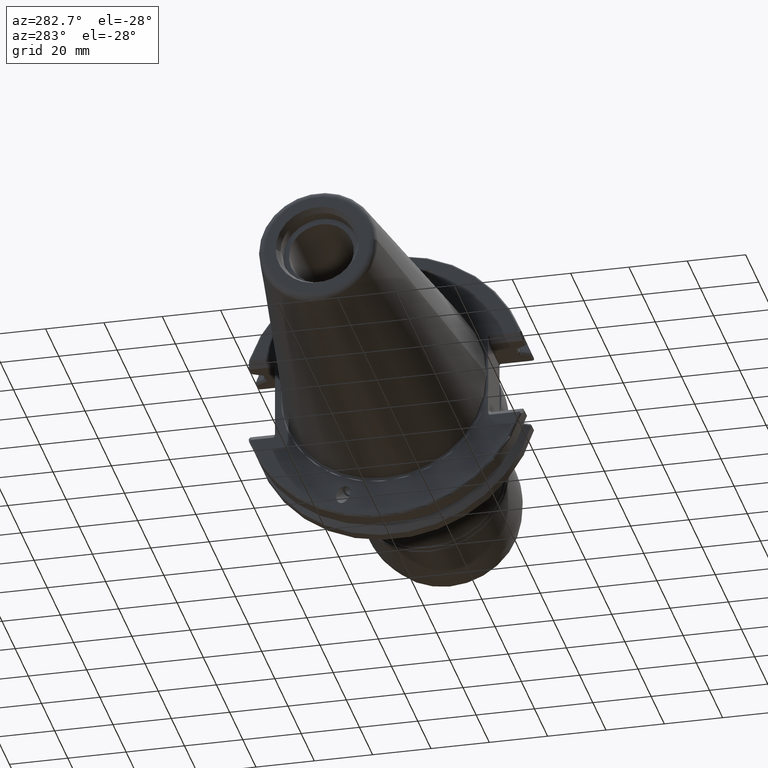
[diagram: clean part render]
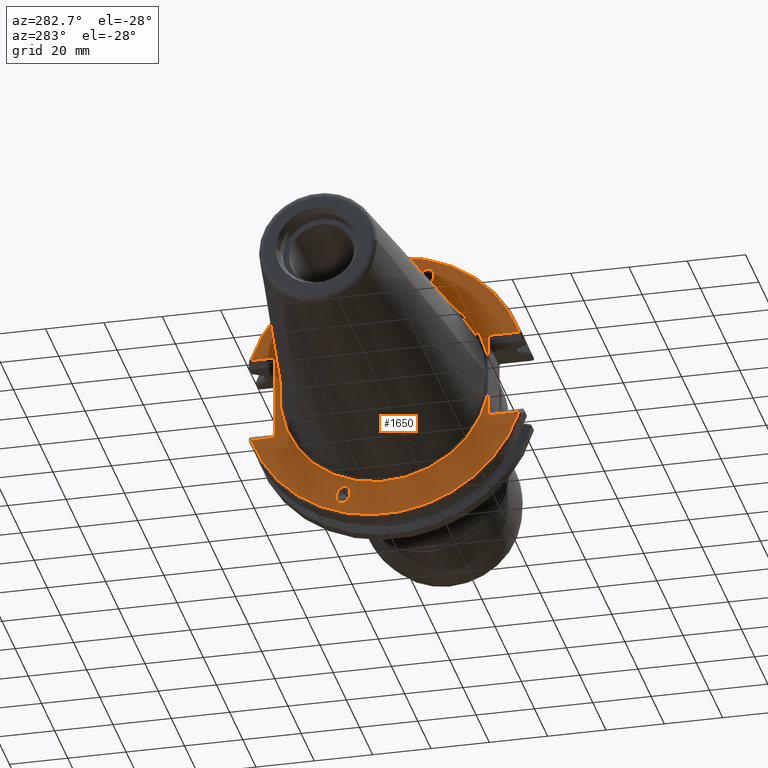
[diagram: same view with one face highlighted and labeled with its STEP entity id]
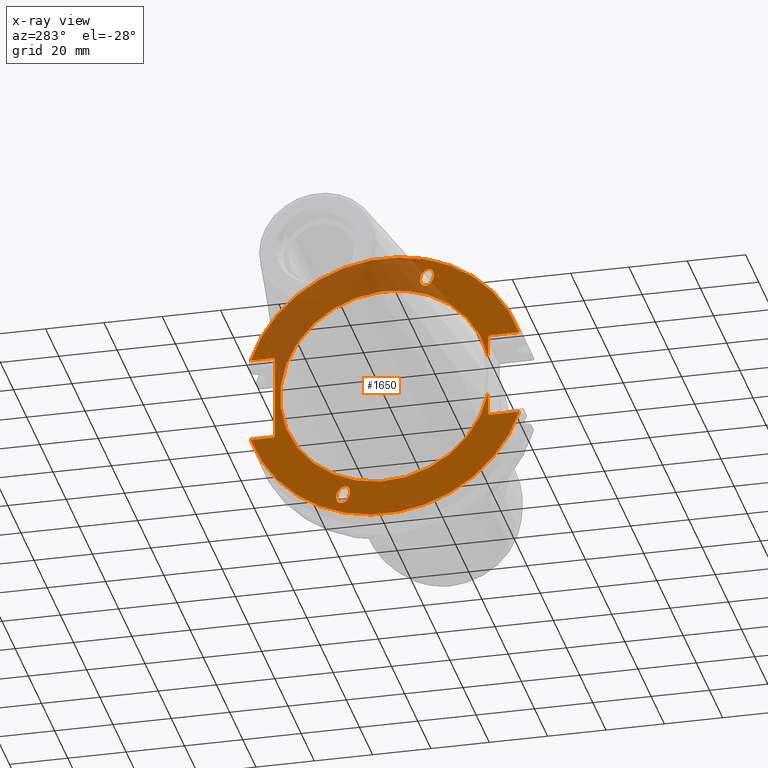
[diagram: x-ray of the same camera — body ghosted, the highlighted face saturated]
A machine part, auxiliary view. The second image highlights one B-rep face of the part: STEP entity #1650.
The next image is the same camera in x-ray: the body ghosted, the highlighted face saturated — about 30% of this face is hidden behind the body in this view.
In plain terms, the highlighted planar face has unit normal (-1, -0, 0).
Its self-contained STEP definition (entity closure, byte-faithful):
#21 = CARTESIAN_POINT ( 'NONE',  ( 1.316068725322319600, -10.27418603782531800, 42.55461335172919500 ) ) ;
#78 = CARTESIAN_POINT ( 'NONE',  ( 1.316068725322319600, -14.91185546617001200, 42.55461335172919500 ) ) ;
#107 =( BOUNDED_CURVE ( )  B_SPLINE_CURVE ( 3, ( #6270, #2940, #1846, #5735 ),
 .UNSPECIFIED., .F., .F. ) 
 B_SPLINE_CURVE_WITH_KNOTS ( ( 4, 4 ),
 ( 1.570796326794898300, 3.141592653589793100 ),
 .UNSPECIFIED. ) 
 CURVE ( )  GEOMETRIC_REPRESENTATION_ITEM ( )  RATIONAL_B_SPLINE_CURVE ( ( 1.000000000000000000, 0.8047378541243654900, 0.8047378541243654900, 1.000000000000000000 ) ) 
 REPRESENTATION_ITEM ( '' )  );
#183 = ORIENTED_EDGE ( 'NONE', *, *, #1463, .F. ) ;
#189 = LINE ( 'NONE', #4289, #5932 ) ;
#190 = CARTESIAN_POINT ( 'NONE',  ( 1.316068725322319600, 37.69996832505477600, 15.04999999999997900 ) ) ;
#198 = VERTEX_POINT ( 'NONE', #6967 ) ;
#204 = CARTESIAN_POINT ( 'NONE',  ( 1.316068725322319600, 45.99874359242439700, 15.04999999999997900 ) ) ;
#232 = CARTESIAN_POINT ( 'NONE',  ( 1.316068725322319600, -13.85789992307661000, 36.37956679428695100 ) ) ;
#279 = ORIENTED_EDGE ( 'NONE', *, *, #6528, .T. ) ;
#318 = CARTESIAN_POINT ( 'NONE',  ( 1.316068725322319600, -35.32003167494522000, 7.064700984471993000 ) ) ;
#386 = DIRECTION ( 'NONE',  ( -1.000000000000000000, -4.151679104512832300E-020, 0.0000000000000000000 ) ) ;
#405 = DIRECTION ( 'NONE',  ( -0.0000000000000000000, 1.000000000000000000, -0.0000000000000000000 ) ) ;
#483 = VERTEX_POINT ( 'NONE', #6521 ) ;
#528 = EDGE_CURVE ( 'NONE', #1167, #6058, #1085, .T. ) ;
#529 = CARTESIAN_POINT ( 'NONE',  ( 1.316068725322319600, -14.91185546617001200, 42.55461335172919500 ) ) ;
#581 = AXIS2_PLACEMENT_3D ( 'NONE', #2067, #5975, #2625 ) ;
#594 = EDGE_CURVE ( 'NONE', #1953, #483, #2726, .T. ) ;
#629 = VERTEX_POINT ( 'NONE', #1330 ) ;
#721 = EDGE_CURVE ( 'NONE', #5406, #4374, #4163, .T. ) ;
#730 =( BOUNDED_CURVE ( )  B_SPLINE_CURVE ( 3, ( #7175, #3823, #1618, #5492 ),
 .UNSPECIFIED., .F., .F. ) 
 B_SPLINE_CURVE_WITH_KNOTS ( ( 4, 4 ),
 ( 4.712388980384686100, 6.283185307179586200 ),
 .UNSPECIFIED. ) 
 CURVE ( )  GEOMETRIC_REPRESENTATION_ITEM ( )  RATIONAL_B_SPLINE_CURVE ( ( 1.000000000000000000, 0.8047378541243641600, 0.8047378541243641600, 1.000000000000000000 ) ) 
 REPRESENTATION_ITEM ( '' )  );
#778 = CARTESIAN_POINT ( 'NONE',  ( 1.316068725322319600, -0.02003167494522145300, -2.740953257266259200E-015 ) ) ;
#800 = ORIENTED_EDGE ( 'NONE', *, *, #3792, .T. ) ;
#804 = CARTESIAN_POINT ( 'NONE',  ( 1.316068725322319600, 38.46196832505477700, 15.04999999999997900 ) ) ;
#829 = CIRCLE ( 'NONE', #5994, 48.41249999999998700 ) ;
#910 = CARTESIAN_POINT ( 'NONE',  ( 1.316068725322319600, 35.97996832505477000, -2.740953257266259200E-015 ) ) ;
#949 = LINE ( 'NONE', #5942, #2439 ) ;
#1018 = EDGE_CURVE ( 'NONE', #4945, #2191, #6047, .T. ) ;
#1022 = ORIENTED_EDGE ( 'NONE', *, *, #2443, .F. ) ;
#1084 = LINE ( 'NONE', #2953, #5531 ) ;
#1085 = LINE ( 'NONE', #3754, #4049 ) ;
#1115 = CARTESIAN_POINT ( 'NONE',  ( 1.316068725322319600, 13.81783657318591500, -36.37956679428705800 ) ) ;
#1162 = CARTESIAN_POINT ( 'NONE',  ( 1.316068725322319600, 13.81783657318591500, -36.37956679428705800 ) ) ;
#1167 = VERTEX_POINT ( 'NONE', #1738 ) ;
#1226 = VECTOR ( 'NONE', #5749, 1000.000000000000000 ) ;
#1330 = CARTESIAN_POINT ( 'NONE',  ( 1.316068725322319600, -35.32003167494522000, -13.97236926547168800 ) ) ;
#1339 = DIRECTION ( 'NONE',  ( 0.0000000000000000000, 1.000000000000000000, 0.0000000000000000000 ) ) ;
#1432 = LINE ( 'NONE', #6593, #3515 ) ;
#1463 = EDGE_CURVE ( 'NONE', #4712, #5286, #949, .T. ) ;
#1606 = ORIENTED_EDGE ( 'NONE', *, *, #6877, .T. ) ;
#1618 = CARTESIAN_POINT ( 'NONE',  ( 1.316068725322319800, 38.01559905958307400, -15.04999999999996000 ) ) ;
#1638 = CARTESIAN_POINT ( 'NONE',  ( 1.316068725322319600, -36.08203167494522000, -15.04999999999998500 ) ) ;
#1650 = ADVANCED_FACE ( 'NONE', ( #5667, #2532, #7178 ), #6509, .T. ) ;
#1688 = CARTESIAN_POINT ( 'NONE',  ( 1.316068725322319600, -35.63566240947351800, -15.04999999999998500 ) ) ;
#1701 = ORIENTED_EDGE ( 'NONE', *, *, #1994, .T. ) ;
#1738 = CARTESIAN_POINT ( 'NONE',  ( 1.316068725322319600, -46.03380848417921100, -15.04999999999998500 ) ) ;
#1761 = CIRCLE ( 'NONE', #3659, 35.99999999999999300 ) ;
#1771 = VECTOR ( 'NONE', #4538, 1000.000000000000000 ) ;
#1794 = CARTESIAN_POINT ( 'NONE',  ( 1.316068725322319600, 10.23412268793457800, -42.55461335172926600 ) ) ;
#1846 = CARTESIAN_POINT ( 'NONE',  ( 1.316068725322319300, -35.63566240947351800, 15.05000000000000400 ) ) ;
#1953 = VERTEX_POINT ( 'NONE', #4366 ) ;
#1994 = EDGE_CURVE ( 'NONE', #4374, #5406, #2687, .T. ) ;
#2067 = CARTESIAN_POINT ( 'NONE',  ( 1.316068725322319600, -0.02003167494522145300, -2.740953257266259200E-015 ) ) ;
#2094 = EDGE_CURVE ( 'NONE', #4173, #198, #107, .T. ) ;
#2147 = CARTESIAN_POINT ( 'NONE',  ( 1.316068725322319600, -35.32003167494522000, 13.97236926547170400 ) ) ;
#2148 = EDGE_CURVE ( 'NONE', #5650, #7081, #1761, .T. ) ;
#2165 = ORIENTED_EDGE ( 'NONE', *, *, #2094, .T. ) ;
#2191 = VERTEX_POINT ( 'NONE', #804 ) ;
#2218 = CARTESIAN_POINT ( 'NONE',  ( 1.316068725322319800, 38.01559905958307400, 15.04999999999998100 ) ) ;
#2242 = CARTESIAN_POINT ( 'NONE',  ( 1.316068725322319600, -35.32003167494522000, -13.97236926547168800 ) ) ;
#2251 =( BOUNDED_CURVE ( )  B_SPLINE_CURVE ( 3, ( #4455, #2764, #5549, #1115 ),
 .UNSPECIFIED., .F., .F. ) 
 B_SPLINE_CURVE_WITH_KNOTS ( ( 4, 4 ),
 ( 2.889693557950959900, 6.031286211540751700 ),
 .UNSPECIFIED. ) 
 CURVE ( )  GEOMETRIC_REPRESENTATION_ITEM ( )  RATIONAL_B_SPLINE_CURVE ( ( 1.000000000000000000, 0.3333333333333338100, 0.3333333333333338100, 1.000000000000000000 ) ) 
 REPRESENTATION_ITEM ( '' )  );
#2270 = ORIENTED_EDGE ( 'NONE', *, *, #6623, .T. ) ;
#2278 = CARTESIAN_POINT ( 'NONE',  ( 1.316068725322319600, 49.19246832505477600, 15.04999999999997900 ) ) ;
#2364 = CARTESIAN_POINT ( 'NONE',  ( 1.316068725322319600, 38.46196832505477700, -15.04999999999997200 ) ) ;
#2366 = ORIENTED_EDGE ( 'NONE', *, *, #594, .F. ) ;
#2439 = VECTOR ( 'NONE', #3712, 1000.000000000000000 ) ;
#2443 = EDGE_CURVE ( 'NONE', #7189, #198, #189, .T. ) ;
#2532 = FACE_OUTER_BOUND ( 'NONE', #5320, .T. ) ;
#2625 = DIRECTION ( 'NONE',  ( 0.0000000000000000000, -1.000000000000000000, 0.0000000000000000000 ) ) ;
#2681 = DIRECTION ( 'NONE',  ( -1.000000000000000000, -4.151679104512832300E-020, 0.0000000000000000000 ) ) ;
#2687 =( BOUNDED_CURVE ( )  B_SPLINE_CURVE ( 3, ( #529, #3866, #4975, #6027 ),
 .UNSPECIFIED., .F., .F. ) 
 B_SPLINE_CURVE_WITH_KNOTS ( ( 4, 4 ),
 ( 2.889693557950959100, 6.031286211540751700 ),
 .UNSPECIFIED. ) 
 CURVE ( )  GEOMETRIC_REPRESENTATION_ITEM ( )  RATIONAL_B_SPLINE_CURVE ( ( 1.000000000000000000, 0.3333333333333335400, 0.3333333333333335400, 1.000000000000000000 ) ) 
 REPRESENTATION_ITEM ( '' )  );
#2726 = LINE ( 'NONE', #190, #1226 ) ;
#2764 = CARTESIAN_POINT ( 'NONE',  ( 1.316068725322319600, 19.50946154462395700, -42.55461335172932300 ) ) ;
#2780 = CARTESIAN_POINT ( 'NONE',  ( 1.316068725322319600, 37.69996832505477600, 13.97236926547168400 ) ) ;
#2880 = CARTESIAN_POINT ( 'NONE',  ( 1.316068725322319600, 9.180167144841219000, -36.37956679428701500 ) ) ;
#2940 = CARTESIAN_POINT ( 'NONE',  ( 1.316068725322319300, -35.32003167494522000, 14.60363073452830000 ) ) ;
#2953 = CARTESIAN_POINT ( 'NONE',  ( 1.316068725322319600, -35.32003167494522000, 15.05000000000000100 ) ) ;
#3136 = EDGE_CURVE ( 'NONE', #5927, #6559, #2251, .T. ) ;
#3310 = CARTESIAN_POINT ( 'NONE',  ( 1.316068725322319600, 45.99874363068255400, -15.04999999999997200 ) ) ;
#3515 = VECTOR ( 'NONE', #7158, 1000.000000000000000 ) ;
#3659 = AXIS2_PLACEMENT_3D ( 'NONE', #778, #4677, #1339 ) ;
#3712 = DIRECTION ( 'NONE',  ( 0.0000000000000000000, -1.000000000000000000, 0.0000000000000000000 ) ) ;
#3754 = CARTESIAN_POINT ( 'NONE',  ( 1.316068725322319600, -49.23253167494522100, -15.04999999999998500 ) ) ;
#3792 = EDGE_CURVE ( 'NONE', #4712, #1167, #829, .T. ) ;
#3823 = CARTESIAN_POINT ( 'NONE',  ( 1.316068725322319800, 37.69996832505477600, -14.60363073452825900 ) ) ;
#3866 = CARTESIAN_POINT ( 'NONE',  ( 1.316068725322319600, -19.54952489451470000, 42.55461335172919500 ) ) ;
#3911 = CARTESIAN_POINT ( 'NONE',  ( 1.316068725322319600, -9.220230494731916700, 36.37956679428695100 ) ) ;
#3935 = EDGE_LOOP ( 'NONE', ( #2270, #5530 ) ) ;
#4049 = VECTOR ( 'NONE', #5428, 1000.000000000000000 ) ;
#4074 = ORIENTED_EDGE ( 'NONE', *, *, #528, .T. ) ;
#4134 = CIRCLE ( 'NONE', #581, 48.41249999999998700 ) ;
#4163 =( BOUNDED_CURVE ( )  B_SPLINE_CURVE ( 3, ( #4467, #3911, #21, #5031 ),
 .UNSPECIFIED., .F., .F. ) 
 B_SPLINE_CURVE_WITH_KNOTS ( ( 4, 4 ),
 ( 6.031286211540751700, 9.172878865130545700 ),
 .UNSPECIFIED. ) 
 CURVE ( )  GEOMETRIC_REPRESENTATION_ITEM ( )  RATIONAL_B_SPLINE_CURVE ( ( 1.000000000000000000, 0.3333333333333330400, 0.3333333333333330400, 1.000000000000000000 ) ) 
 REPRESENTATION_ITEM ( '' )  );
#4166 = ORIENTED_EDGE ( 'NONE', *, *, #721, .T. ) ;
#4173 = VERTEX_POINT ( 'NONE', #2147 ) ;
#4182 = ORIENTED_EDGE ( 'NONE', *, *, #4234, .T. ) ;
#4234 = EDGE_CURVE ( 'NONE', #2191, #483, #5581, .T. ) ;
#4270 = DIRECTION ( 'NONE',  ( 4.151679104512832300E-020, -1.000000000000000000, 0.0000000000000000000 ) ) ;
#4271 = CARTESIAN_POINT ( 'NONE',  ( 1.316068725322319600, -46.03380848417919700, 15.05000000000000100 ) ) ;
#4289 = CARTESIAN_POINT ( 'NONE',  ( 1.316068725322319600, -49.23253167494522100, 15.05000000000000100 ) ) ;
#4366 = CARTESIAN_POINT ( 'NONE',  ( 1.316068725322319600, 37.69996832505477600, -13.97236926547166500 ) ) ;
#4374 = VERTEX_POINT ( 'NONE', #78 ) ;
#4405 = CARTESIAN_POINT ( 'NONE',  ( 1.316068725322319600, -36.08203167494522000, -15.04999999999998500 ) ) ;
#4455 = CARTESIAN_POINT ( 'NONE',  ( 1.316068725322319600, 14.87179211627927500, -42.55461335172929400 ) ) ;
#4467 = CARTESIAN_POINT ( 'NONE',  ( 1.316068725322319600, -13.85789992307661000, 36.37956679428695100 ) ) ;
#4538 = DIRECTION ( 'NONE',  ( 0.0000000000000000000, -1.000000000000000000, 0.0000000000000000000 ) ) ;
#4677 = DIRECTION ( 'NONE',  ( 1.000000000000000000, 4.151679104512832300E-020, -0.0000000000000000000 ) ) ;
#4712 = VERTEX_POINT ( 'NONE', #3310 ) ;
#4945 = VERTEX_POINT ( 'NONE', #204 ) ;
#4975 = CARTESIAN_POINT ( 'NONE',  ( 1.316068725322319600, -18.49556935142129900, 36.37956679428695800 ) ) ;
#5031 = CARTESIAN_POINT ( 'NONE',  ( 1.316068725322319600, -14.91185546617001200, 42.55461335172919500 ) ) ;
#5035 = EDGE_CURVE ( 'NONE', #7189, #4945, #4134, .T. ) ;
#5094 = CARTESIAN_POINT ( 'NONE',  ( 1.316068725322319600, 13.81783657318591500, -36.37956679428705800 ) ) ;
#5116 = EDGE_CURVE ( 'NONE', #1953, #5286, #730, .T. ) ;
#5286 = VERTEX_POINT ( 'NONE', #2364 ) ;
#5320 = EDGE_LOOP ( 'NONE', ( #1022, #6887, #7209, #4182, #2366, #6245, #183, #800, #4074, #1606, #279, #6802, #5601, #2165 ) ) ;
#5344 = EDGE_CURVE ( 'NONE', #7081, #4173, #1084, .T. ) ;
#5406 = VERTEX_POINT ( 'NONE', #232 ) ;
#5425 = AXIS2_PLACEMENT_3D ( 'NONE', #910, #386, #4270 ) ;
#5428 = DIRECTION ( 'NONE',  ( -0.0000000000000000000, 1.000000000000000000, -0.0000000000000000000 ) ) ;
#5492 = CARTESIAN_POINT ( 'NONE',  ( 1.316068725322319600, 38.46196832505477700, -15.04999999999997200 ) ) ;
#5530 = ORIENTED_EDGE ( 'NONE', *, *, #3136, .T. ) ;
#5531 = VECTOR ( 'NONE', #6288, 1000.000000000000000 ) ;
#5545 = CARTESIAN_POINT ( 'NONE',  ( 1.316068725322319600, 38.46196832505477700, 15.04999999999997900 ) ) ;
#5549 = CARTESIAN_POINT ( 'NONE',  ( 1.316068725322319600, 18.45550600153059800, -36.37956679428707200 ) ) ;
#5562 = CARTESIAN_POINT ( 'NONE',  ( 1.316068725322319600, -35.32003167494522000, -14.60363073452828300 ) ) ;
#5581 =( BOUNDED_CURVE ( )  B_SPLINE_CURVE ( 3, ( #5545, #2218, #6118, #2780 ),
 .UNSPECIFIED., .F., .F. ) 
 B_SPLINE_CURVE_WITH_KNOTS ( ( 4, 4 ),
 ( 3.141592653589793100, 4.712388980384693200 ),
 .UNSPECIFIED. ) 
 CURVE ( )  GEOMETRIC_REPRESENTATION_ITEM ( )  RATIONAL_B_SPLINE_CURVE ( ( 1.000000000000000000, 0.8047378541243641600, 0.8047378541243641600, 1.000000000000000000 ) ) 
 REPRESENTATION_ITEM ( '' )  );
#5601 = ORIENTED_EDGE ( 'NONE', *, *, #5344, .T. ) ;
#5650 = VERTEX_POINT ( 'NONE', #6668 ) ;
#5665 = CARTESIAN_POINT ( 'NONE',  ( 1.316068725322319600, 14.87179211627927500, -42.55461335172929400 ) ) ;
#5667 = FACE_BOUND ( 'NONE', #6733, .T. ) ;
#5735 = CARTESIAN_POINT ( 'NONE',  ( 1.316068725322319600, -36.08203167494522000, 15.05000000000000100 ) ) ;
#5749 = DIRECTION ( 'NONE',  ( -0.0000000000000000000, -0.0000000000000000000, 1.000000000000000000 ) ) ;
#5802 =( BOUNDED_CURVE ( )  B_SPLINE_CURVE ( 3, ( #4405, #1688, #5562, #2242 ),
 .UNSPECIFIED., .F., .F. ) 
 B_SPLINE_CURVE_WITH_KNOTS ( ( 4, 4 ),
 ( 0.0000000000000000000, 1.570796326794896600 ),
 .UNSPECIFIED. ) 
 CURVE ( )  GEOMETRIC_REPRESENTATION_ITEM ( )  RATIONAL_B_SPLINE_CURVE ( ( 1.000000000000000000, 0.8047378541243649400, 0.8047378541243649400, 1.000000000000000000 ) ) 
 REPRESENTATION_ITEM ( '' )  );
#5919 =( BOUNDED_CURVE ( )  B_SPLINE_CURVE ( 3, ( #5094, #2880, #1794, #5665 ),
 .UNSPECIFIED., .F., .F. ) 
 B_SPLINE_CURVE_WITH_KNOTS ( ( 4, 4 ),
 ( 6.031286211540751700, 9.172878865130545700 ),
 .UNSPECIFIED. ) 
 CURVE ( )  GEOMETRIC_REPRESENTATION_ITEM ( )  RATIONAL_B_SPLINE_CURVE ( ( 1.000000000000000000, 0.3333333333333330400, 0.3333333333333330400, 1.000000000000000000 ) ) 
 REPRESENTATION_ITEM ( '' )  );
#5927 = VERTEX_POINT ( 'NONE', #7102 ) ;
#5932 = VECTOR ( 'NONE', #405, 1000.000000000000000 ) ;
#5942 = CARTESIAN_POINT ( 'NONE',  ( 1.316068725322319600, 49.19246832505477600, -15.04999999999997200 ) ) ;
#5975 = DIRECTION ( 'NONE',  ( -1.000000000000000000, -4.151679104512832300E-020, 0.0000000000000000000 ) ) ;
#5994 = AXIS2_PLACEMENT_3D ( 'NONE', #6030, #2681, #6589 ) ;
#6027 = CARTESIAN_POINT ( 'NONE',  ( 1.316068725322319600, -13.85789992307661000, 36.37956679428695100 ) ) ;
#6030 = CARTESIAN_POINT ( 'NONE',  ( 1.316068725322319600, -0.02003167494522145300, -2.740953257266259200E-015 ) ) ;
#6047 = LINE ( 'NONE', #2278, #1771 ) ;
#6058 = VERTEX_POINT ( 'NONE', #1638 ) ;
#6118 = CARTESIAN_POINT ( 'NONE',  ( 1.316068725322319800, 37.69996832505477600, 14.60363073452828300 ) ) ;
#6245 = ORIENTED_EDGE ( 'NONE', *, *, #5116, .T. ) ;
#6270 = CARTESIAN_POINT ( 'NONE',  ( 1.316068725322319600, -35.32003167494522000, 13.97236926547170400 ) ) ;
#6288 = DIRECTION ( 'NONE',  ( -0.0000000000000000000, -0.0000000000000000000, 1.000000000000000000 ) ) ;
#6509 = PLANE ( 'NONE',  #5425 ) ;
#6521 = CARTESIAN_POINT ( 'NONE',  ( 1.316068725322319600, 37.69996832505477600, 13.97236926547168400 ) ) ;
#6528 = EDGE_CURVE ( 'NONE', #629, #5650, #1432, .T. ) ;
#6559 = VERTEX_POINT ( 'NONE', #1162 ) ;
#6589 = DIRECTION ( 'NONE',  ( 0.0000000000000000000, -1.000000000000000000, 0.0000000000000000000 ) ) ;
#6593 = CARTESIAN_POINT ( 'NONE',  ( 1.316068725322319600, -35.32003167494522000, 15.05000000000000100 ) ) ;
#6623 = EDGE_CURVE ( 'NONE', #6559, #5927, #5919, .T. ) ;
#6668 = CARTESIAN_POINT ( 'NONE',  ( 1.316068725322319600, -35.32003167494522000, -7.064700984471998300 ) ) ;
#6733 = EDGE_LOOP ( 'NONE', ( #4166, #1701 ) ) ;
#6802 = ORIENTED_EDGE ( 'NONE', *, *, #2148, .T. ) ;
#6877 = EDGE_CURVE ( 'NONE', #6058, #629, #5802, .T. ) ;
#6887 = ORIENTED_EDGE ( 'NONE', *, *, #5035, .T. ) ;
#6967 = CARTESIAN_POINT ( 'NONE',  ( 1.316068725322319600, -36.08203167494522000, 15.05000000000000100 ) ) ;
#7081 = VERTEX_POINT ( 'NONE', #318 ) ;
#7102 = CARTESIAN_POINT ( 'NONE',  ( 1.316068725322319600, 14.87179211627927500, -42.55461335172929400 ) ) ;
#7158 = DIRECTION ( 'NONE',  ( -0.0000000000000000000, -0.0000000000000000000, 1.000000000000000000 ) ) ;
#7175 = CARTESIAN_POINT ( 'NONE',  ( 1.316068725322319600, 37.69996832505477600, -13.97236926547166500 ) ) ;
#7178 = FACE_BOUND ( 'NONE', #3935, .T. ) ;
#7189 = VERTEX_POINT ( 'NONE', #4271 ) ;
#7209 = ORIENTED_EDGE ( 'NONE', *, *, #1018, .T. ) ;